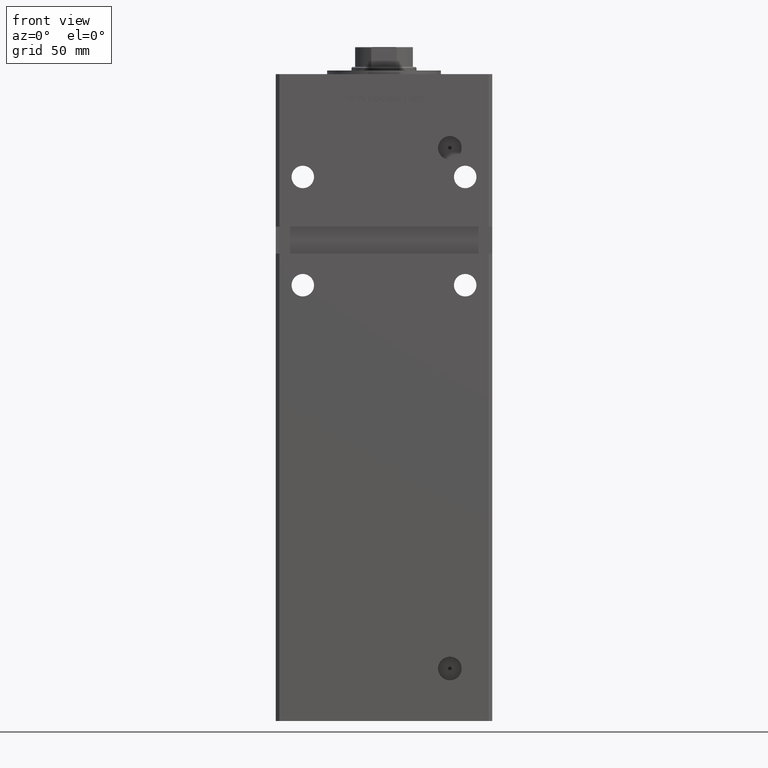
[diagram: clean part render]
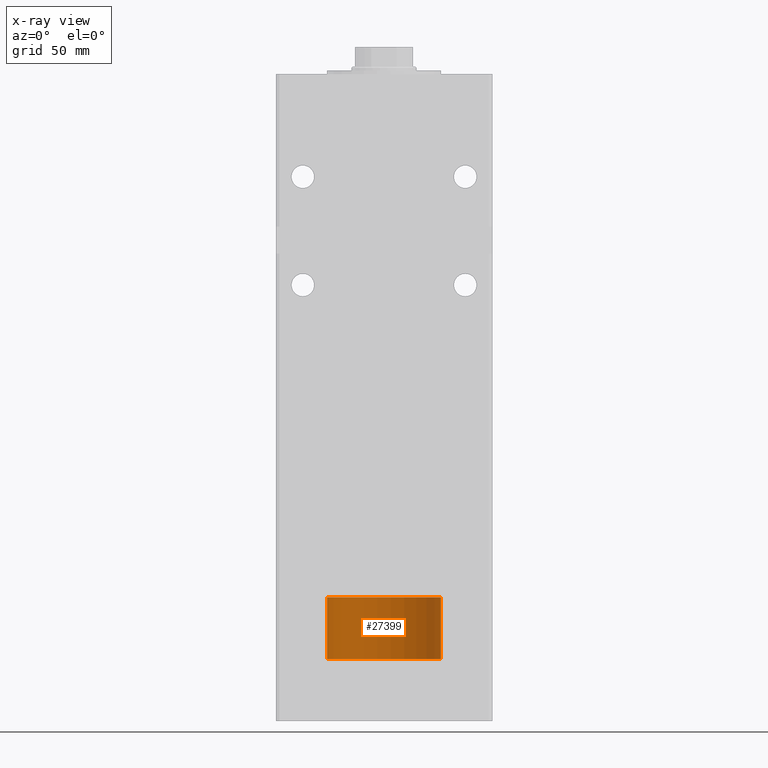
[diagram: x-ray — body ghosted, one internal face saturated and labeled with its STEP entity id]
A machine part, front view, then the same camera in x-ray: the body is ghosted and one INTERNAL B-rep face — a face not visible from any outside direction — is saturated and labeled: STEP entity #27399.
In plain terms, the highlighted cylindrical surface (partial cylindrical patch) has radius 31.5 mm, axis along (-0, -0, -1).
Its self-contained STEP definition (entity closure, byte-faithful):
#88 = DIRECTION ( 'NONE',  ( 0.000000000000000000, 0.000000000000000000, 1.000000000000000000 ) ) ;
#3961 = VERTEX_POINT ( 'NONE', #25526 ) ;
#4128 = EDGE_CURVE ( 'NONE', #46139, #18049, #47478, .T. ) ;
#8359 = CARTESIAN_POINT ( 'NONE',  ( 31.50000000000000000, 3.857637417314162689E-15, 34.25000000000000000 ) ) ;
#9818 = ORIENTED_EDGE ( 'NONE', *, *, #4128, .T. ) ;
#10771 = DIRECTION ( 'NONE',  ( -0.000000000000000000, -0.000000000000000000, -1.000000000000000000 ) ) ;
#10955 = ORIENTED_EDGE ( 'NONE', *, *, #47357, .F. ) ;
#12409 = ORIENTED_EDGE ( 'NONE', *, *, #28604, .T. ) ;
#15169 = EDGE_LOOP ( 'NONE', ( #26160, #9818, #12409, #10955 ) ) ;
#16607 = CARTESIAN_POINT ( 'NONE',  ( 31.50000000000000000, 3.857637417314162689E-15, 0.000000000000000000 ) ) ;
#17342 = CYLINDRICAL_SURFACE ( 'NONE', #33163, 31.50000000000000000 ) ;
#17607 = CARTESIAN_POINT ( 'NONE',  ( 0.000000000000000000, 0.000000000000000000, 34.25000000000000000 ) ) ;
#18049 = VERTEX_POINT ( 'NONE', #16607 ) ;
#19492 = AXIS2_PLACEMENT_3D ( 'NONE', #36801, #88, #41080 ) ;
#21041 = DIRECTION ( 'NONE',  ( 0.000000000000000000, 0.000000000000000000, 1.000000000000000000 ) ) ;
#23353 = CARTESIAN_POINT ( 'NONE',  ( -31.50000000000000000, 0.000000000000000000, 34.25000000000000000 ) ) ;
#24430 = CIRCLE ( 'NONE', #50122, 31.50000000000000000 ) ;
#25526 = CARTESIAN_POINT ( 'NONE',  ( -31.50000000000000000, 0.000000000000000000, 34.25000000000000000 ) ) ;
#26160 = ORIENTED_EDGE ( 'NONE', *, *, #44820, .F. ) ;
#27399 = ADVANCED_FACE ( 'NONE', ( #42779 ), #17342, .T. ) ;
#28285 = VECTOR ( 'NONE', #10771, 1000.000000000000000 ) ;
#28604 = EDGE_CURVE ( 'NONE', #18049, #47933, #52045, .T. ) ;
#31124 = CARTESIAN_POINT ( 'NONE',  ( 31.50000000000000000, 3.857637417314162689E-15, 34.25000000000000000 ) ) ;
#33163 = AXIS2_PLACEMENT_3D ( 'NONE', #17607, #34209, #50575 ) ;
#33712 = CARTESIAN_POINT ( 'NONE',  ( -31.50000000000000000, 0.000000000000000000, 0.000000000000000000 ) ) ;
#34209 = DIRECTION ( 'NONE',  ( -0.000000000000000000, -0.000000000000000000, -1.000000000000000000 ) ) ;
#35953 = LINE ( 'NONE', #23353, #39033 ) ;
#36801 = CARTESIAN_POINT ( 'NONE',  ( 0.000000000000000000, 0.000000000000000000, 0.000000000000000000 ) ) ;
#39033 = VECTOR ( 'NONE', #51526, 1000.000000000000000 ) ;
#40359 = DIRECTION ( 'NONE',  ( 1.000000000000000000, 0.000000000000000000, 0.000000000000000000 ) ) ;
#41080 = DIRECTION ( 'NONE',  ( 1.000000000000000000, 0.000000000000000000, 0.000000000000000000 ) ) ;
#42779 = FACE_OUTER_BOUND ( 'NONE', #15169, .T. ) ;
#44820 = EDGE_CURVE ( 'NONE', #46139, #3961, #24430, .T. ) ;
#46139 = VERTEX_POINT ( 'NONE', #8359 ) ;
#47357 = EDGE_CURVE ( 'NONE', #3961, #47933, #35953, .T. ) ;
#47478 = LINE ( 'NONE', #31124, #28285 ) ;
#47933 = VERTEX_POINT ( 'NONE', #33712 ) ;
#50122 = AXIS2_PLACEMENT_3D ( 'NONE', #52980, #21041, #40359 ) ;
#50575 = DIRECTION ( 'NONE',  ( -1.000000000000000000, 0.000000000000000000, 0.000000000000000000 ) ) ;
#51526 = DIRECTION ( 'NONE',  ( -0.000000000000000000, -0.000000000000000000, -1.000000000000000000 ) ) ;
#52045 = CIRCLE ( 'NONE', #19492, 31.50000000000000000 ) ;
#52980 = CARTESIAN_POINT ( 'NONE',  ( 0.000000000000000000, 0.000000000000000000, 34.25000000000000000 ) ) ;